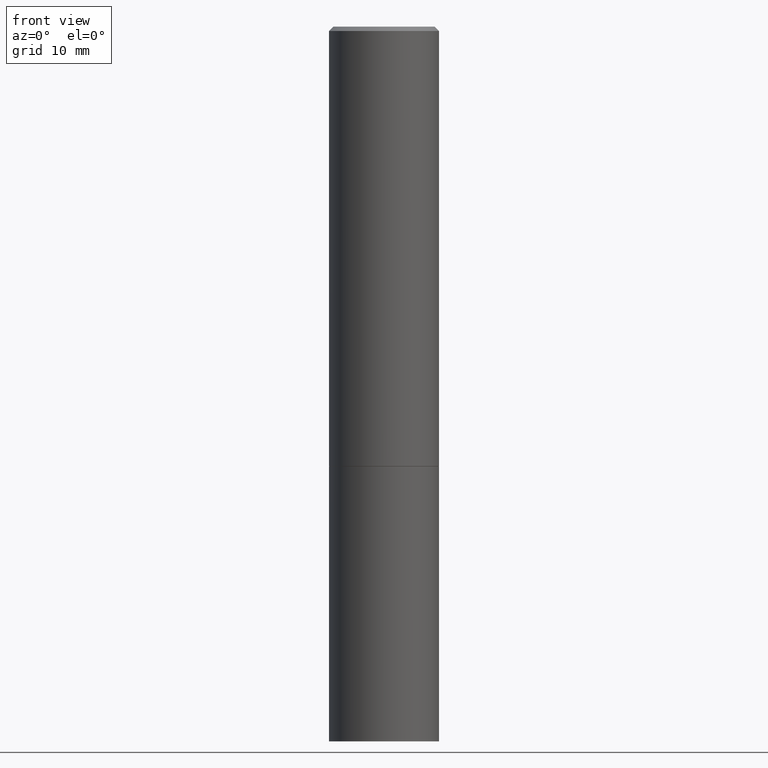
[diagram: clean part render]
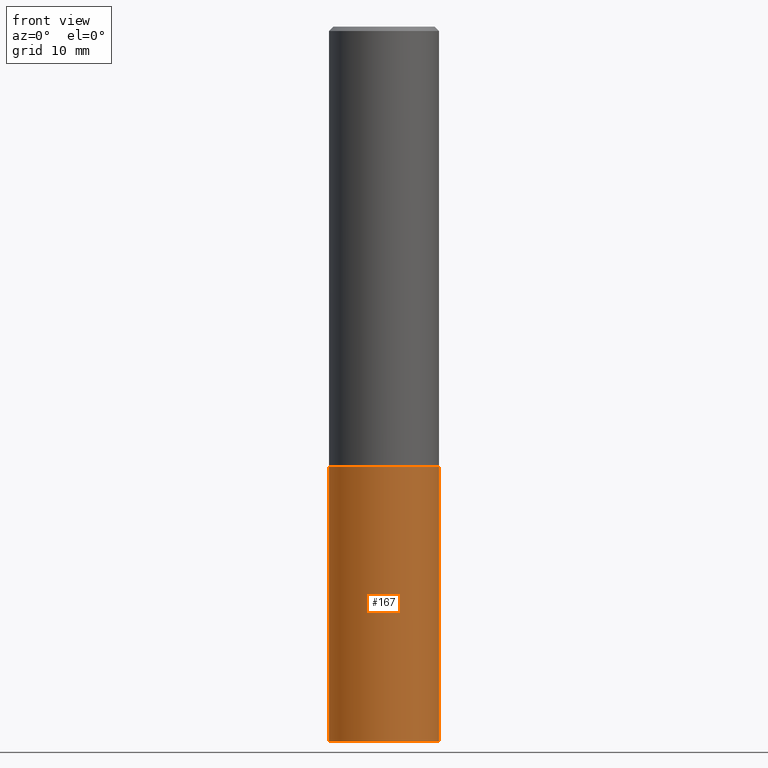
[diagram: same view with one face highlighted and labeled with its STEP entity id]
A machine part, front view. The second image highlights one B-rep face of the part: STEP entity #167.
In plain terms, the highlighted cylindrical surface (partial cylindrical patch) has radius 6.35 mm, axis along (-0, 0, 1).
Its self-contained STEP definition (entity closure, byte-faithful):
#1 = CARTESIAN_POINT ( 'NONE',  ( 7.947773620101693940E-29, -1.134731435124022443E-14, -3.250000000000000000 ) ) ;
#5 = ORIENTED_EDGE ( 'NONE', *, *, #246, .T. ) ;
#17 = CARTESIAN_POINT ( 'NONE',  ( 0.000000000000000000, 0.000000000000000000, 0.000000000000000000 ) ) ;
#24 = DIRECTION ( 'NONE',  ( -2.445468806185136597E-29, 3.491481338843145583E-15, 1.000000000000000000 ) ) ;
#41 = DIRECTION ( 'NONE',  ( 1.000000000000000000, -6.982962677686266711E-15, 4.876176775795935793E-29 ) ) ;
#51 = CARTESIAN_POINT ( 'NONE',  ( 0.2500000000000000000, -1.745740669421566678E-15, 1.219044193948983948E-29 ) ) ;
#74 = CARTESIAN_POINT ( 'NONE',  ( 4.890937612370273194E-29, -6.982962677686291165E-15, -2.000000000000000000 ) ) ;
#89 = CIRCLE ( 'NONE', #220, 0.2500000000000000000 ) ;
#91 = VERTEX_POINT ( 'NONE', #155 ) ;
#102 = CYLINDRICAL_SURFACE ( 'NONE', #275, 0.2500000000000000000 ) ;
#109 = VERTEX_POINT ( 'NONE', #178 ) ;
#115 = ORIENTED_EDGE ( 'NONE', *, *, #240, .F. ) ;
#116 = VECTOR ( 'NONE', #187, 39.37007874015748143 ) ;
#138 = DIRECTION ( 'NONE',  ( -2.445468806185136597E-29, 3.491481338843145583E-15, 1.000000000000000000 ) ) ;
#155 = CARTESIAN_POINT ( 'NONE',  ( -0.2500000000000000000, -7.388781675063007725E-15, -2.000000000000000000 ) ) ;
#167 = ADVANCED_FACE ( 'NONE', ( #318 ), #102, .T. ) ;
#169 = LINE ( 'NONE', #51, #174 ) ;
#174 = VECTOR ( 'NONE', #361, 39.37007874015748143 ) ;
#178 = CARTESIAN_POINT ( 'NONE',  ( 0.2500000000000000000, -8.728703347107857054E-15, -2.000000000000000000 ) ) ;
#187 = DIRECTION ( 'NONE',  ( -2.445468806185136877E-29, 3.491481338843145188E-15, 1.000000000000000000 ) ) ;
#190 = VERTEX_POINT ( 'NONE', #264 ) ;
#193 = AXIS2_PLACEMENT_3D ( 'NONE', #1, #24, #217 ) ;
#214 = DIRECTION ( 'NONE',  ( -2.445468806185136597E-29, 3.491481338843145583E-15, 1.000000000000000000 ) ) ;
#217 = DIRECTION ( 'NONE',  ( 1.000000000000000000, -6.982962677686262766E-15, 0.000000000000000000 ) ) ;
#220 = AXIS2_PLACEMENT_3D ( 'NONE', #74, #138, #319 ) ;
#222 = ORIENTED_EDGE ( 'NONE', *, *, #286, .T. ) ;
#229 = VERTEX_POINT ( 'NONE', #298 ) ;
#240 = EDGE_CURVE ( 'NONE', #229, #91, #249, .T. ) ;
#246 = EDGE_CURVE ( 'NONE', #229, #190, #309, .T. ) ;
#249 = LINE ( 'NONE', #328, #116 ) ;
#264 = CARTESIAN_POINT ( 'NONE',  ( 0.2500000000000000000, -1.309305502066178953E-14, -3.250000000000000000 ) ) ;
#275 = AXIS2_PLACEMENT_3D ( 'NONE', #17, #214, #41 ) ;
#286 = EDGE_CURVE ( 'NONE', #190, #109, #169, .T. ) ;
#298 = CARTESIAN_POINT ( 'NONE',  ( -0.2500000000000000000, -7.388781675063007725E-15, -3.250000000000000000 ) ) ;
#309 = CIRCLE ( 'NONE', #193, 0.2500000000000000000 ) ;
#315 = ORIENTED_EDGE ( 'NONE', *, *, #346, .F. ) ;
#318 = FACE_OUTER_BOUND ( 'NONE', #339, .T. ) ;
#319 = DIRECTION ( 'NONE',  ( 1.000000000000000000, -6.982962677686266711E-15, 0.000000000000000000 ) ) ;
#328 = CARTESIAN_POINT ( 'NONE',  ( -0.2500000000000000000, 1.776356839400250465E-15, -1.229733772563726445E-29 ) ) ;
#339 = EDGE_LOOP ( 'NONE', ( #115, #5, #222, #315 ) ) ;
#346 = EDGE_CURVE ( 'NONE', #91, #109, #89, .T. ) ;
#361 = DIRECTION ( 'NONE',  ( -2.445468806185136877E-29, 3.491481338843145188E-15, 1.000000000000000000 ) ) ;